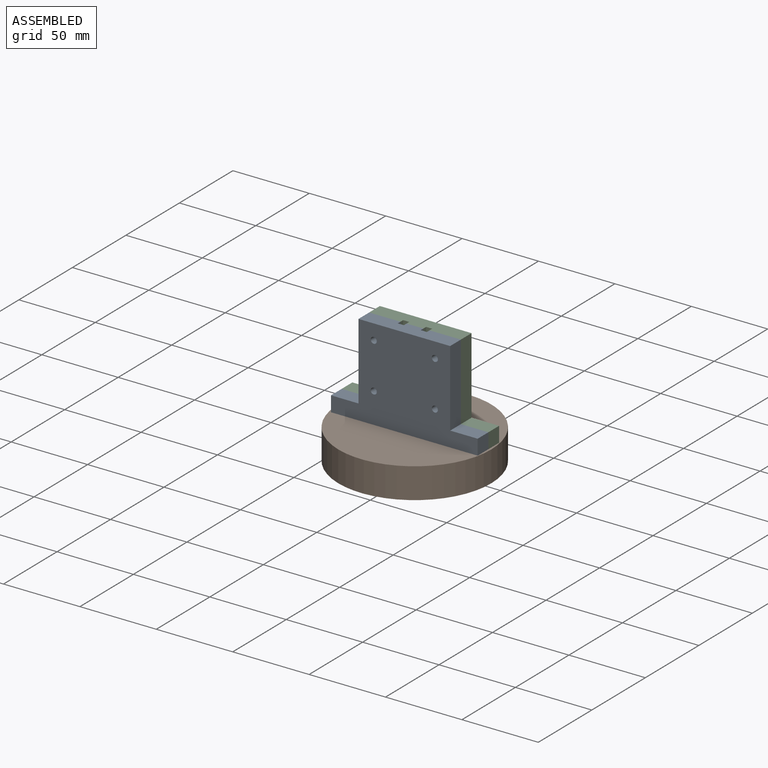
[diagram: assembled view]
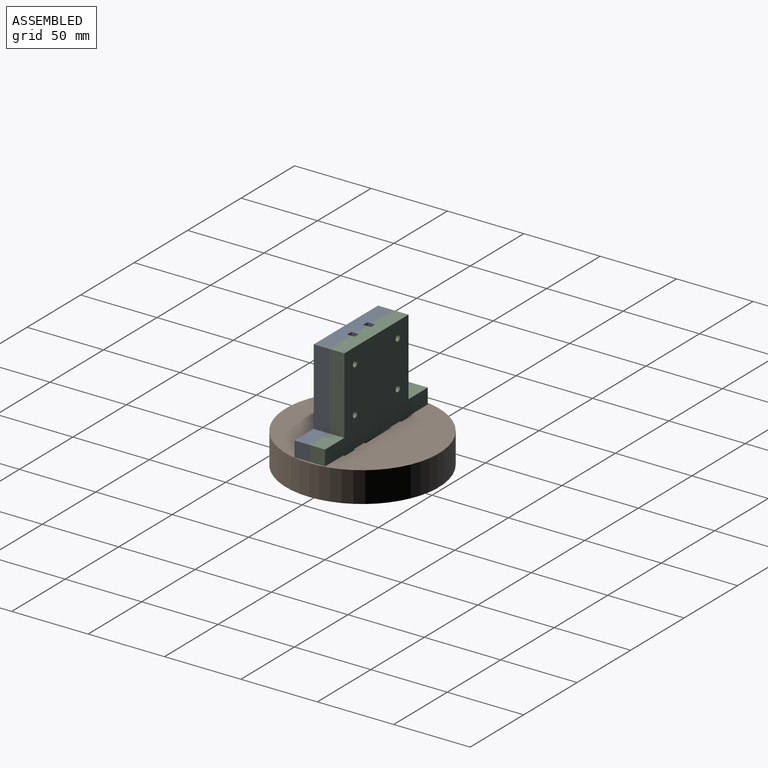
[diagram: assembled view, second angle]
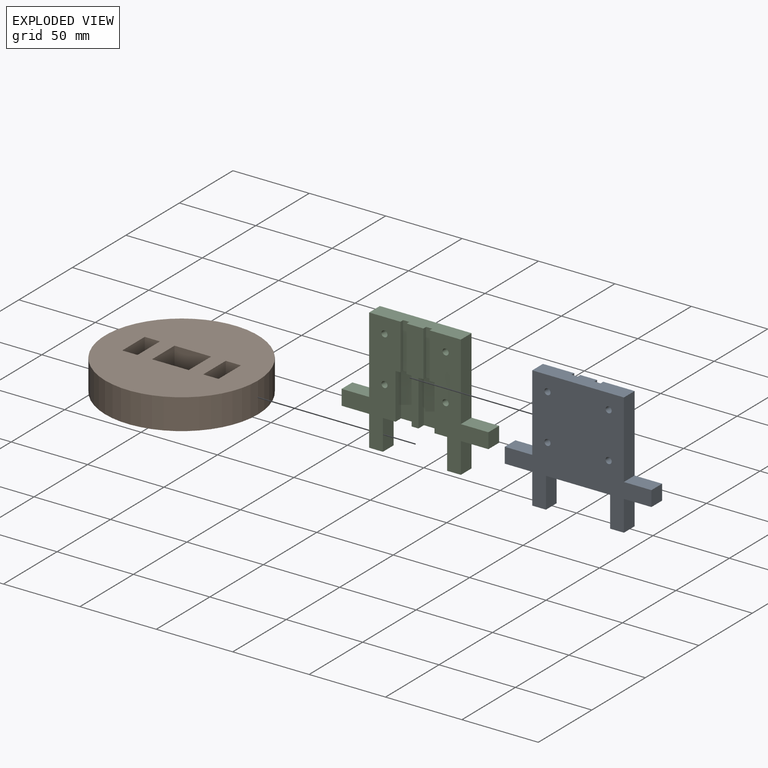
[diagram: exploded view]
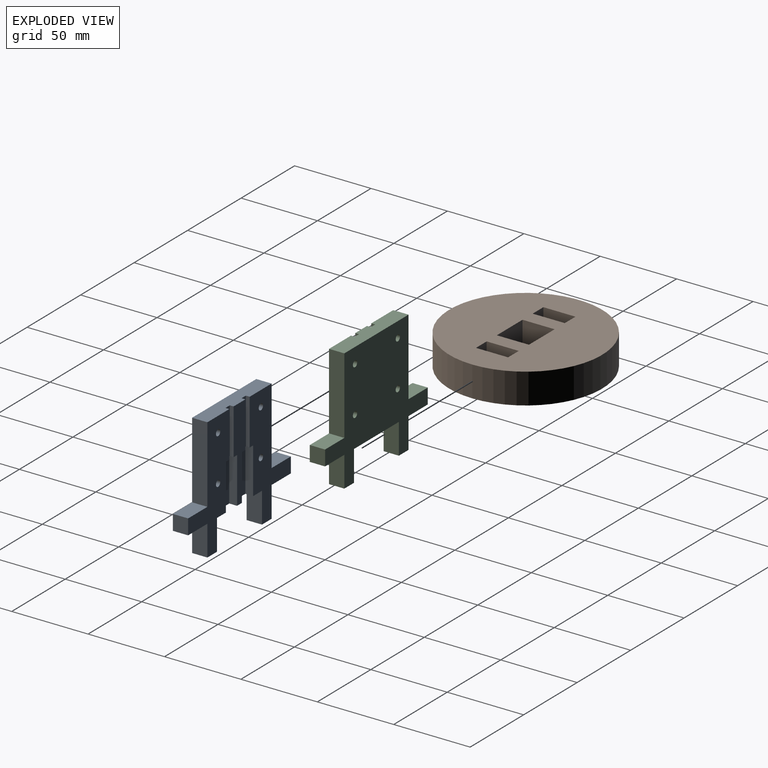
[diagram: exploded view, second angle]
ASSEMBLY  parts=3 mates=6
PART A: 38 faces, bbox 96x10x80 mm
  f0: plane 60x11mm, normal (0,-1,0), area 465mm2, adj f2,f3,f4,f12,f26,f29,f33,f36
  f1: plane 80x38.5mm, normal (0,-1,0), area 1467.4mm2, adj f2,f4,f5,f6,f7,f8,f9,f10
  f2: plane 10.5x5.1mm, normal (0,0,-1), area 43.5mm2, adj f0,f1,f26,f27,f28,f35,f36,f37
  f3: plane 10.5x5.1mm, normal (0,0,-1), area 43.5mm2, adj f0,f25,f29,f30,f31,f32,f33,f34
  f4: plane 42x10mm, normal (0,0,-1), area 312.9mm2, adj f0,f1,f5,f22,f24,f25,f26,f27
  f5: plane 20x10mm, normal (-1,0,0), area 200mm2, adj f1,f4,f6,f24
  f6: plane 10x9mm, normal (0,0,-1), area 90mm2, adj f1,f5,f7,f24
  f7: plane 20x10mm, normal (1,0,0), area 200mm2, adj f1,f6,f8,f24
  f8: plane 18x10mm, normal (0,0,-1), area 180mm2, adj f1,f7,f9,f24
  f9: plane 10x10mm, normal (1,0,0), area 100mm2, adj f1,f8,f10,f24
  f10: plane 18x10mm, normal (0,0,1), area 180mm2, adj f1,f9,f11,f24
  f11: plane 50x10mm, normal (1,0,0), area 500mm2, adj f1,f10,f12,f24
  f12: plane 60x10mm, normal (0,0,1), area 580mm2, adj f0,f1,f11,f13,f24,f25,f32,f33
  f13: plane 50x10mm, normal (-1,0,0), area 500mm2, adj f12,f14,f24,f25
  f14: plane 18x10mm, normal (0,0,1), area 180mm2, adj f13,f15,f24,f25
  f15: plane 10x10mm, normal (-1,0,0), area 100mm2, adj f14,f16,f24,f25
  f16: plane 18x10mm, normal (0,0,-1), area 180mm2, adj f15,f17,f24,f25
  f17: plane 20x10mm, normal (-1,0,0), area 200mm2, adj f16,f18,f24,f25
  f18: plane 10x9mm, normal (0,0,-1), area 90mm2, adj f17,f22,f24,f25
  f19: cylinder r=2mm len=10mm, axis (0,-1,0), area 125.7mm2, adj f24,f25
  f20: cylinder r=2mm len=10mm, axis (0,-1,0), area 125.7mm2, adj f1,f24
  f21: cylinder r=2mm len=10mm, axis (0,-1,0), area 125.7mm2, adj f1,f24
  f22: plane 20x10mm, normal (1,0,0), area 200mm2, adj f4,f18,f24,f25
  f23: cylinder r=2mm len=10mm, axis (0,-1,0), area 125.7mm2, adj f24,f25
  f24: plane 96x80mm, normal (0,1,0), area 4269.7mm2, adj f4,f5,f6,f7,f8,f9,f10,f11
  f25: plane 80x38.5mm, normal (0,-1,0), area 1467.4mm2, adj f3,f4,f12,f13,f14,f15,f16,f17
  f26: plane 30x5.1mm, normal (1,0,0), area 153mm2, adj f0,f2,f4,f28
  f27: plane 30x5.1mm, normal (-1,0,0), area 153mm2, adj f1,f2,f4,f28
  f28: plane 30x10.5mm, normal (0,-1,0), area 315mm2, adj f2,f4,f26,f27
  f29: plane 30x5.1mm, normal (-1,0,0), area 153mm2, adj f0,f3,f4,f31
  f30: plane 30x5.1mm, normal (1,0,0), area 153mm2, adj f3,f4,f25,f31
  f31: plane 30x10.5mm, normal (0,-1,0), area 315mm2, adj f3,f4,f29,f30
  f32: plane 30x2.5mm, normal (1,0,0), area 75mm2, adj f3,f12,f25,f34
  f33: plane 30x2.5mm, normal (-1,0,0), area 75mm2, adj f0,f3,f12,f34
  f34: plane 30x4mm, normal (0,-1,0), area 120mm2, adj f3,f12,f32,f33
  f35: plane 30x2.5mm, normal (-1,0,0), area 75mm2, adj f1,f2,f12,f37
  f36: plane 30x2.5mm, normal (1,0,0), area 75mm2, adj f0,f2,f12,f37
  f37: plane 30x4mm, normal (0,-1,0), area 120mm2, adj f2,f12,f35,f36
PART B: 15 faces, bbox 100x100x20 mm
  f0: plane 24x20mm, normal (0,1,0), area 480mm2, adj f1,f9,f13,f14
  f1: plane 21x20mm, normal (1,0,0), area 420mm2, adj f0,f2,f13,f14
  f2: plane 24x20mm, normal (0,-1,0), area 480mm2, adj f1,f9,f13,f14
  f3: plane 20x10mm, normal (0,1,0), area 200mm2, adj f4,f10,f13,f14
  f4: plane 21x20mm, normal (1,0,0), area 420mm2, adj f3,f5,f13,f14
  f5: plane 20x10mm, normal (0,-1,0), area 200mm2, adj f4,f10,f13,f14
  f6: plane 20x10mm, normal (0,1,0), area 200mm2, adj f7,f11,f13,f14
  f7: plane 21x20mm, normal (1,0,0), area 420mm2, adj f6,f8,f13,f14
  f8: plane 20x10mm, normal (0,-1,0), area 200mm2, adj f7,f11,f13,f14
  f9: plane 21x20mm, normal (-1,0,0), area 420mm2, adj f0,f2,f13,f14
  f10: plane 21x20mm, normal (-1,0,0), area 420mm2, adj f3,f5,f13,f14
  f11: plane 21x20mm, normal (-1,0,0), area 420mm2, adj f6,f8,f13,f14
  f12: cylinder r=50mm len=100mm, axis (0,0,1), area 6283.2mm2, adj f13,f14
  f13: plane 100x100mm, normal (0,0,-1), area 6930mm2, adj f0,f1,f2,f3,f4,f5,f6,f7
  f14: plane 100x100mm, normal (0,0,1), area 6930mm2, adj f0,f1,f2,f3,f4,f5,f6,f7
PART C: same geometry as A
PLACE A rot(axis=(0,0,1),180deg) t=(-5.56,-0.25,51.94)mm
PLACE B t=(-6.06,0.25,21.94)mm
PLACE C t=(-5.56,-0.25,51.94)mm
MATE planar A.f22 <-> B.f4  axis (-1,0,0) through (15.44,-5.25,11.94)mm
MATE planar C.f11 <-> A.f13  axis (1,0,0) through (24.44,4.75,56.94)mm
MATE planar A.f16 <-> B.f12  axis (0,0,-1) through (33.44,-5.25,21.94)mm
MATE planar A.f24 <-> B.f3  axis (0,-1,0) through (19.94,-10.25,1.94)mm
MATE planar A.f12 <-> C.f12  axis (0,0,1) through (14.19,-0.25,81.94)mm
MATE planar C.f1 <-> A.f25  axis (0,-1,0) through (17.83,-0.25,44.88)mm
